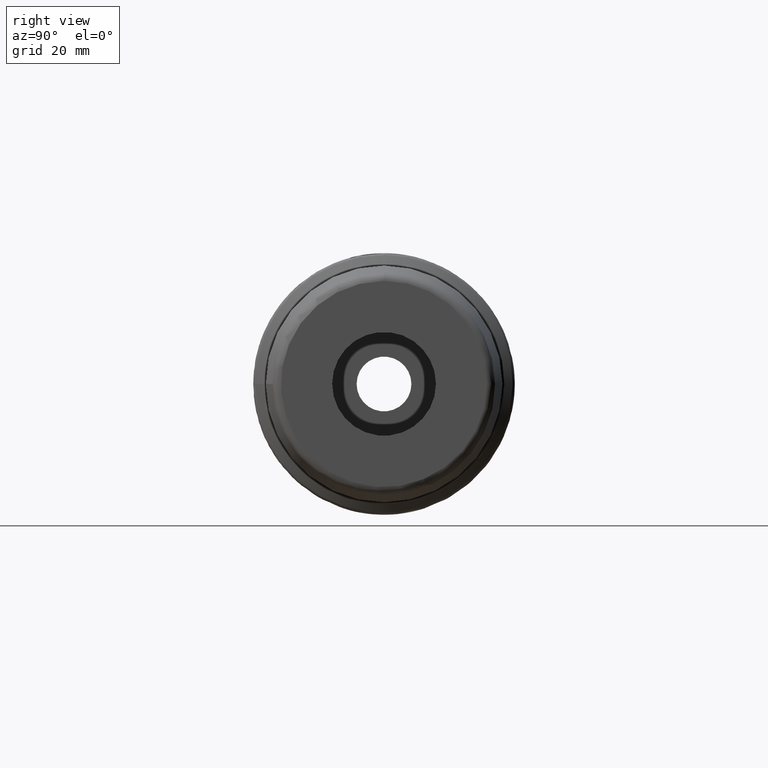
[diagram: clean part render]
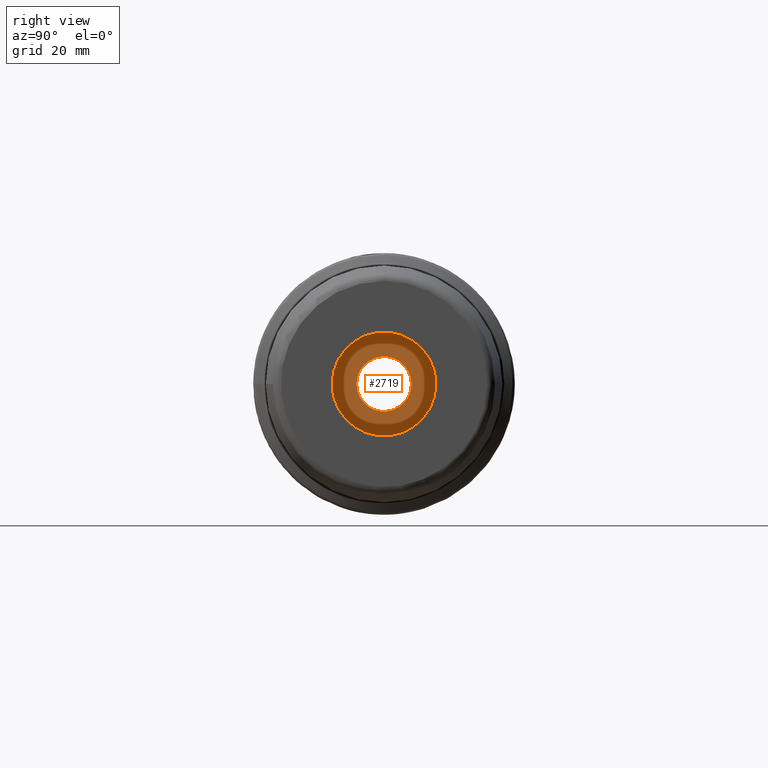
[diagram: same view with one face highlighted and labeled with its STEP entity id]
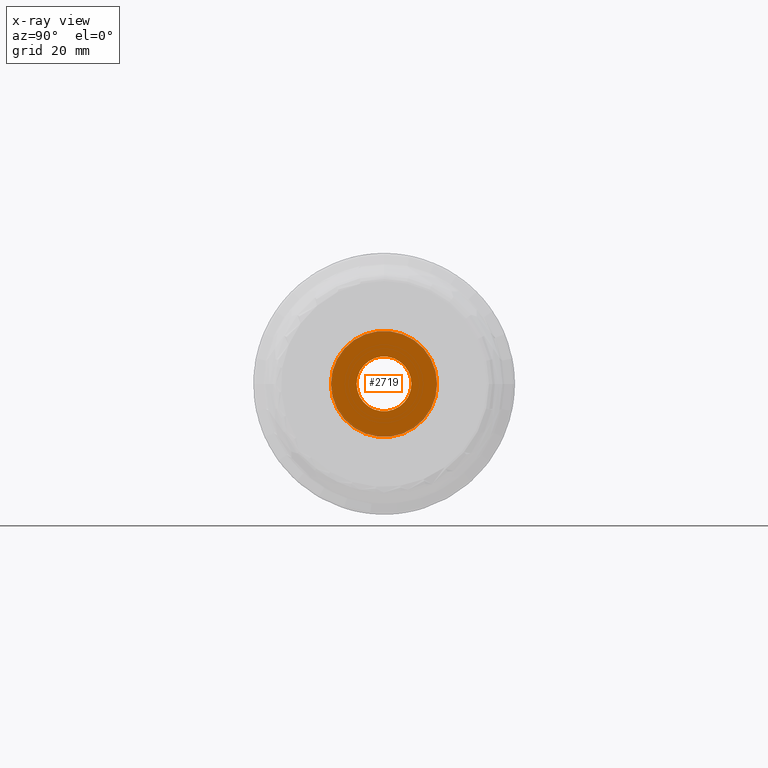
[diagram: x-ray of the same camera — body ghosted, the highlighted face saturated]
A machine part, right view. The second image highlights one B-rep face of the part: STEP entity #2719.
The next image is the same camera in x-ray: the body ghosted, the highlighted face saturated — about 6% of this face is hidden behind the body in this view.
In plain terms, the highlighted planar face has unit normal (1, 0, 0).
Its self-contained STEP definition (entity closure, byte-faithful):
#41=FACE_BOUND('',#650,.T.);
#53=PLANE('',#2997);
#501=FACE_OUTER_BOUND('',#649,.T.);
#649=EDGE_LOOP('',(#2027,#2028));
#650=EDGE_LOOP('',(#2029,#2030));
#876=CIRCLE('',#2995,12.8);
#877=CIRCLE('',#2996,12.8);
#878=CIRCLE('',#2998,6.6);
#879=CIRCLE('',#2999,6.6);
#1108=VERTEX_POINT('',#4588);
#1109=VERTEX_POINT('',#4590);
#1110=VERTEX_POINT('',#4594);
#1111=VERTEX_POINT('',#4595);
#1452=EDGE_CURVE('',#1109,#1108,#876,.T.);
#1453=EDGE_CURVE('',#1108,#1109,#877,.T.);
#1454=EDGE_CURVE('',#1110,#1111,#878,.T.);
#1455=EDGE_CURVE('',#1111,#1110,#879,.T.);
#2027=ORIENTED_EDGE('',*,*,#1452,.T.);
#2028=ORIENTED_EDGE('',*,*,#1453,.T.);
#2029=ORIENTED_EDGE('',*,*,#1454,.F.);
#2030=ORIENTED_EDGE('',*,*,#1455,.F.);
#2719=ADVANCED_FACE('',(#501,#41),#53,.T.);
#2995=AXIS2_PLACEMENT_3D('',#4591,#3555,#3556);
#2996=AXIS2_PLACEMENT_3D('',#4592,#3557,#3558);
#2997=AXIS2_PLACEMENT_3D('',#4593,#3559,#3560);
#2998=AXIS2_PLACEMENT_3D('',#4596,#3561,#3562);
#2999=AXIS2_PLACEMENT_3D('',#4597,#3563,#3564);
#3555=DIRECTION('center_axis',(1.,0.,0.));
#3556=DIRECTION('ref_axis',(0.,0.,-1.));
#3557=DIRECTION('center_axis',(1.,0.,0.));
#3558=DIRECTION('ref_axis',(0.,0.,-1.));
#3559=DIRECTION('center_axis',(1.,0.,0.));
#3560=DIRECTION('ref_axis',(0.,0.,-1.));
#3561=DIRECTION('center_axis',(1.,0.,0.));
#3562=DIRECTION('ref_axis',(0.,0.,-1.));
#3563=DIRECTION('center_axis',(1.,0.,0.));
#3564=DIRECTION('ref_axis',(0.,0.,-1.));
#4588=CARTESIAN_POINT('',(63.,-12.8,-1.56754790290861E-15));
#4590=CARTESIAN_POINT('',(63.,12.8,0.));
#4591=CARTESIAN_POINT('Origin',(63.,0.,0.));
#4592=CARTESIAN_POINT('Origin',(63.,0.,0.));
#4593=CARTESIAN_POINT('Origin',(63.,6.6,0.));
#4594=CARTESIAN_POINT('',(63.,6.6,0.));
#4595=CARTESIAN_POINT('',(63.,-6.59999999999999,-8.08266887437252E-16));
#4596=CARTESIAN_POINT('Origin',(63.,0.,0.));
#4597=CARTESIAN_POINT('Origin',(63.,0.,0.));